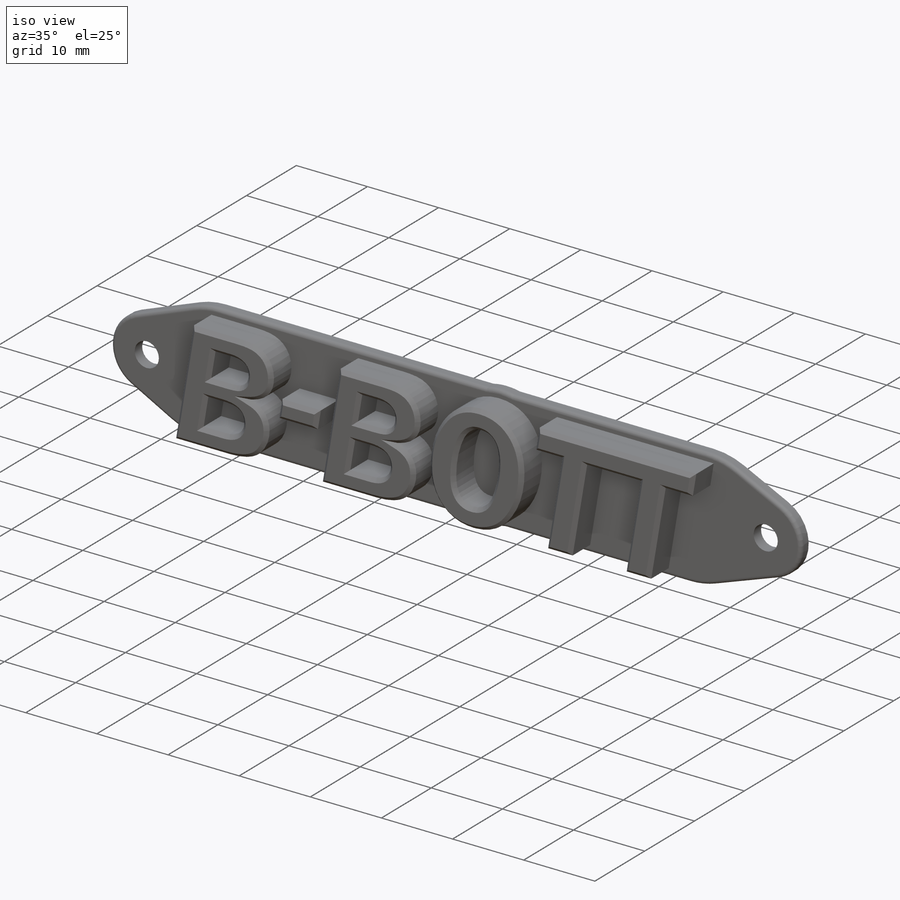
[diagram: iso view]
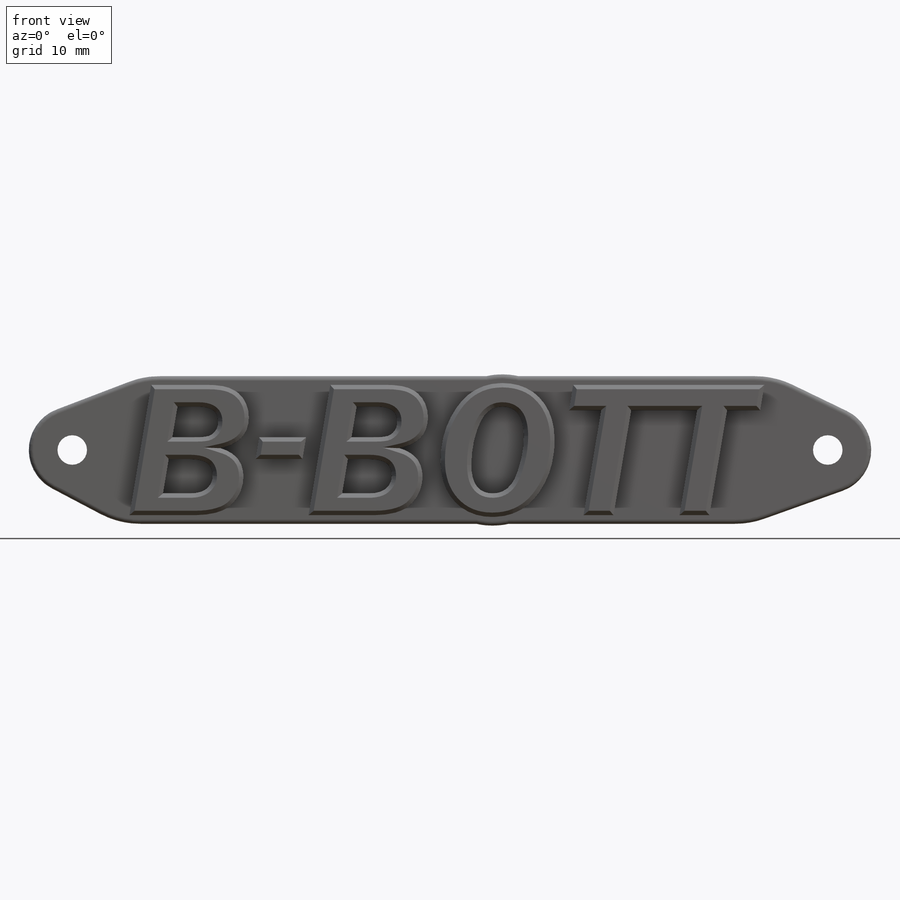
[diagram: front view]
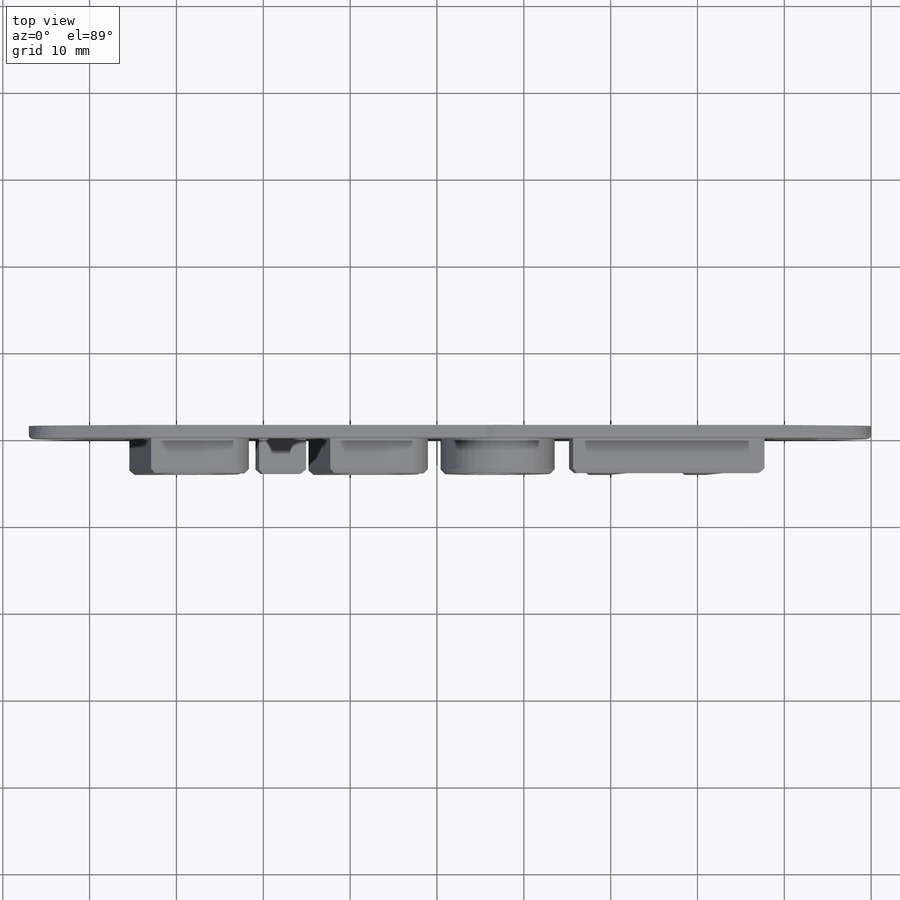
[diagram: top view]
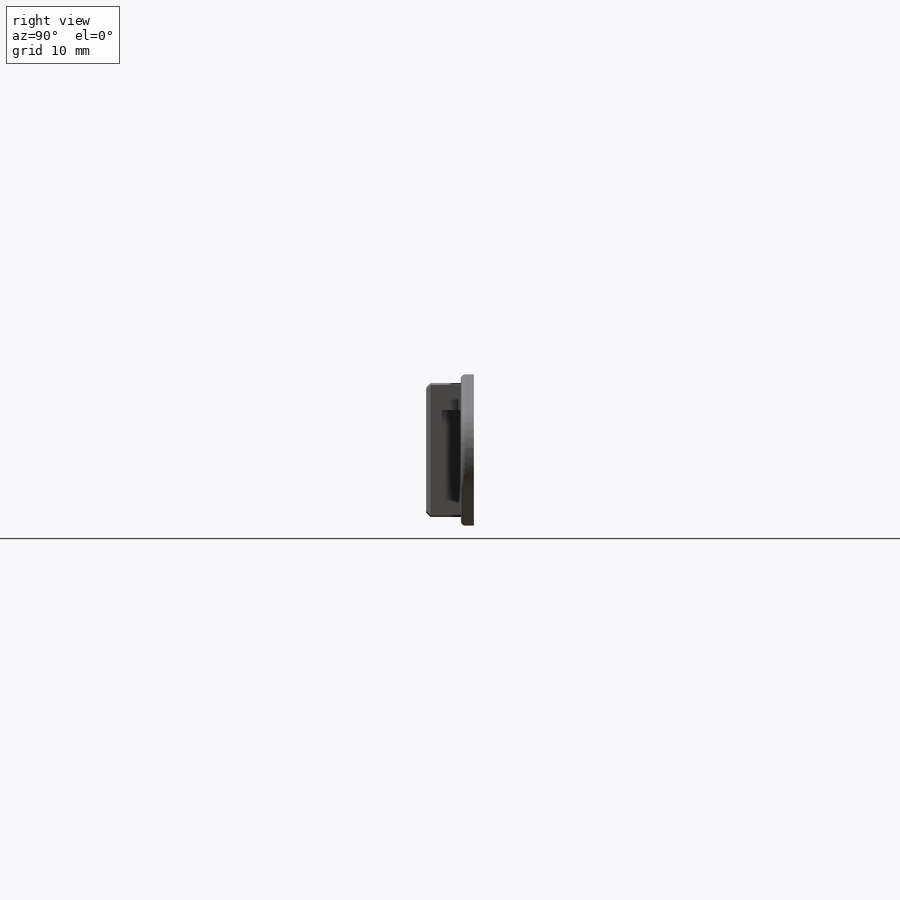
[diagram: right view]
SOLIDWORKS PART (.sldprt)
format: sldprt  version: not decoded by parser v0  size: 925,696 bytes
history: native  units: mm
features: sketch x9, extrude x6, cut_extrude x2, fillet x2, material x1, chamfer x1 (+12 scaffold rows collapsed)
feature tree (33):
  scaffold x12  (default folders/planes/origin — collapsed)
  material  "Material <not specified>"
  sketch  "Sketch1"  dims[D1=150.0mm]
  extrude  "Boss-Extrude1"  Depth=4mm
  sketch  "Sketch2"  dims[D1=~1.584268mm]
  extrude  "Boss-Extrude2"  [1 undecoded]
  sketch  "Sketch3"  dims[D1=~1.512154mm]
  sketch  "Sketch4"  dims[D1=0.0mm]
  cut_extrude  "Cut-Extrude1"  [1 undecoded]
  extrude  "Boss-Extrude3"  [1 undecoded]
  sketch  "Sketch5"  dims[D1=1.0mm D2=1.0mm D3=1.0mm D4=1.0mm]
  extrude  "Boss-Extrude4"  Depth=1.5mm
  chamfer  "Chamfer3"  Distance=0.5mm Angle=45deg
  sketch  "Sketch6"  dims[D1=~9.399197mm]
  extrude  "Boss-Extrude5"  [1 undecoded]
  sketch  "Sketch7"  dims[D2=7.0mm D4=7.0mm D1=7.5mm D3=42.0mm D5=45.0mm]
  sketch  "Sketch10"  dims[D3=~17.236578mm D1=1.5mm D2=1.5mm]
  extrude  "Boss-Extrude8"  [1 undecoded]
  fillet  "Fillet1"  Radius=10mm
  sketch  "Sketch11"  dims[D1=3.4mm D2=3.4mm]
  cut_extrude  "Cut-Extrude2"  [1 undecoded]
  fillet  "Fillet2"  Radius=0.5mm
decode coverage: 14 of 20 modeling features carry decoded parameters
note: ~ marks probable driven/reference dimensions
note: 6 parameter values undecoded
summary: no parameter record found for 6 features
note: suppression state not decoded; provenance and decode notes live in map.json
